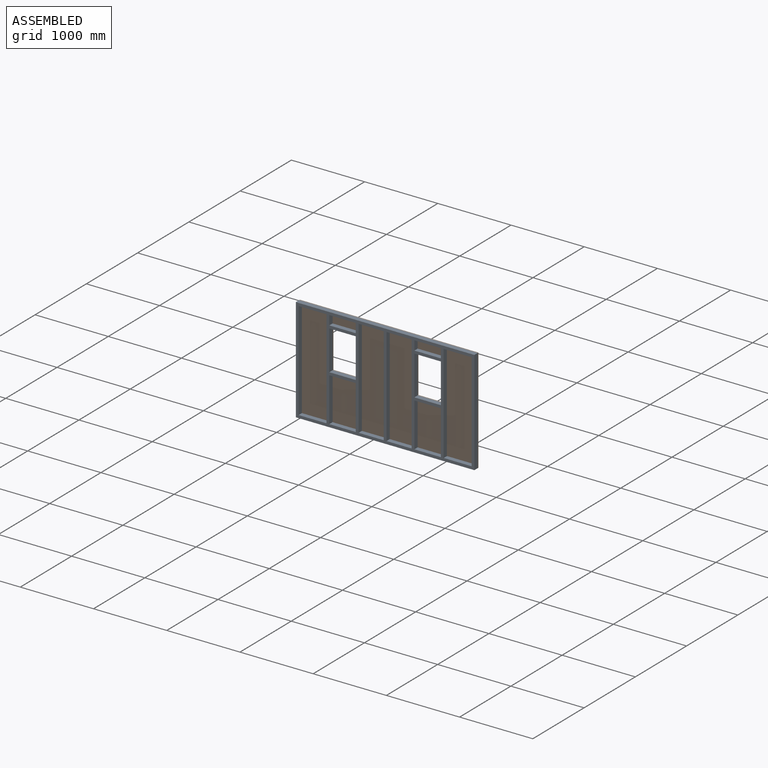
[diagram: assembled view]
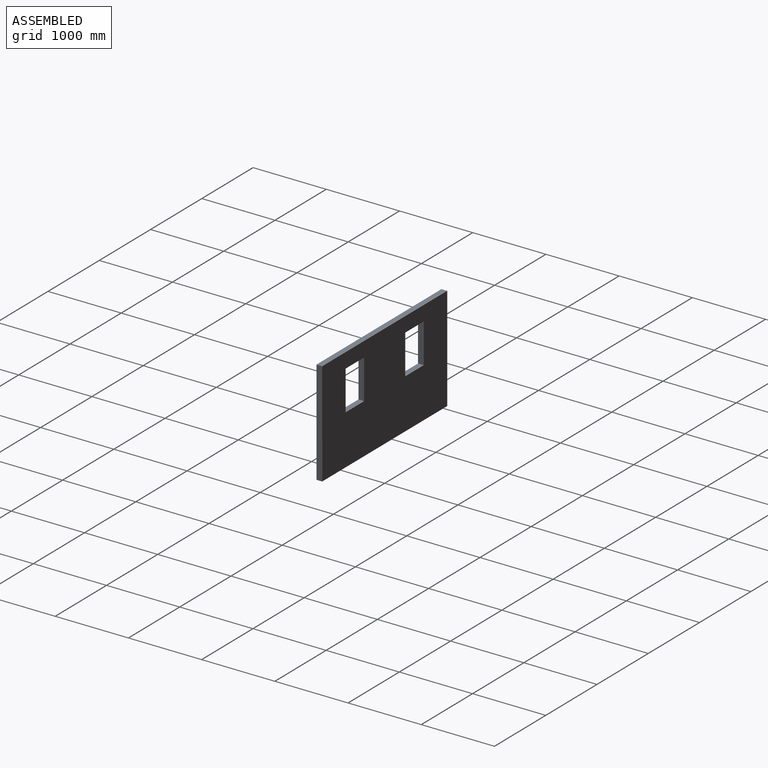
[diagram: assembled view, second angle]
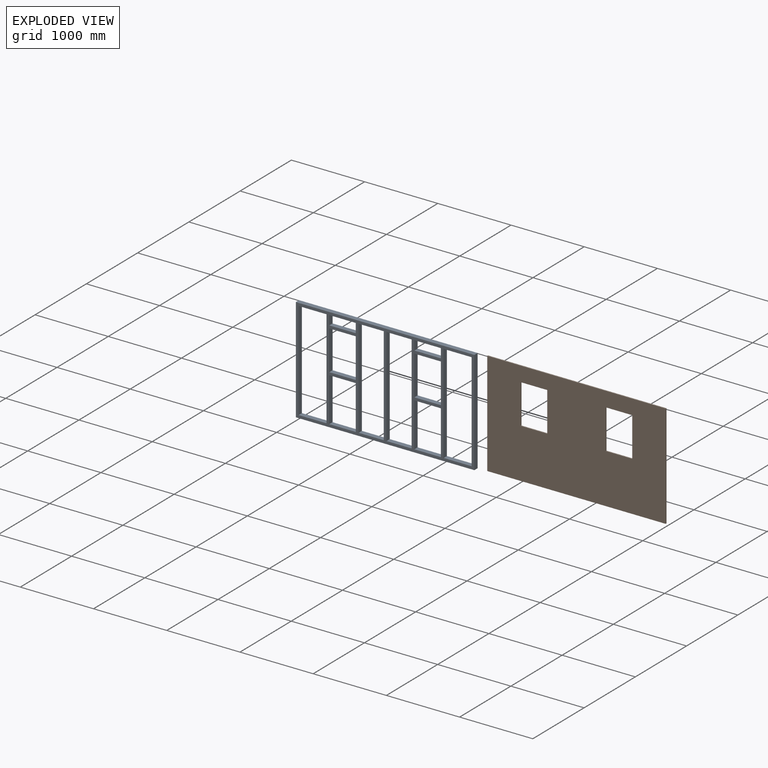
[diagram: exploded view]
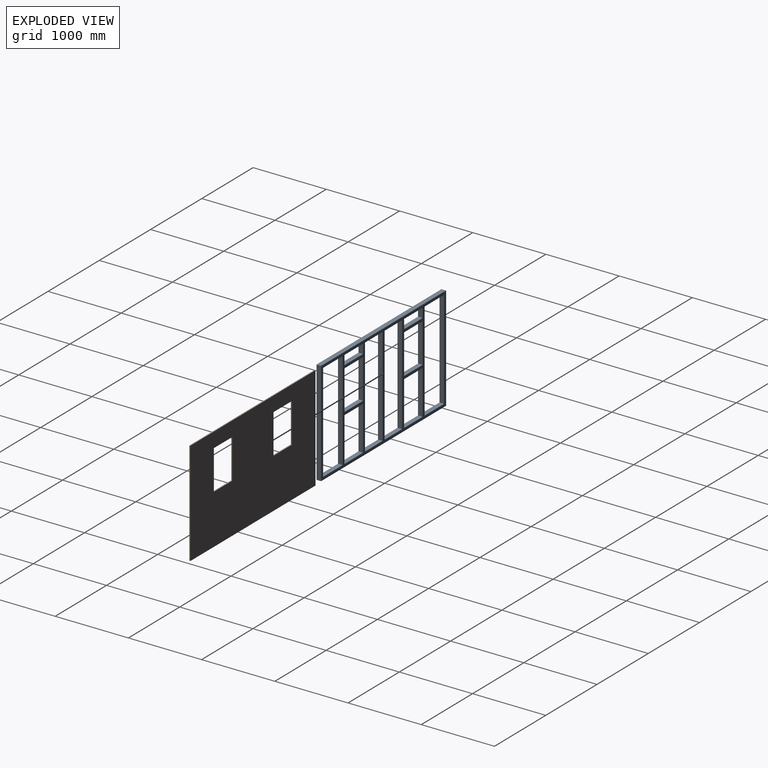
[diagram: exploded view, second angle]
ASSEMBLY  parts=2 mates=3
PART A: 46 faces, bbox 2438.4x63.5x1422.4 mm
  f0: plane 539.75x63.5mm, normal (-1,0,0), area 34274.1mm2, adj f1,f43,f44,f45
  f1: plane 361.95x63.5mm, normal (0,0,1), area 22983.8mm2, adj f0,f2,f44,f45
  f2: plane 539.75x63.5mm, normal (1,0,0), area 34274.1mm2, adj f1,f43,f44,f45
  f3: plane 342.9x63.5mm, normal (0,0,-1), area 21774.2mm2, adj f4,f33,f44,f45
  f4: plane 1346.2x63.5mm, normal (-1,0,0), area 85483.7mm2, adj f3,f5,f44,f45
  f5: plane 342.9x63.5mm, normal (0,0,1), area 21774.2mm2, adj f4,f33,f44,f45
  f6: plane 127x63.5mm, normal (1,0,0), area 8064.5mm2, adj f7,f34,f44,f45
  f7: plane 361.95x63.5mm, normal (0,0,-1), area 22983.8mm2, adj f6,f8,f44,f45
  f8: plane 127x63.5mm, normal (-1,0,0), area 8064.5mm2, adj f7,f34,f44,f45
  f9: plane 381x63.5mm, normal (0,0,-1), area 24193.5mm2, adj f10,f35,f44,f45
  f10: plane 1346.2x63.5mm, normal (-1,0,0), area 85483.7mm2, adj f9,f11,f44,f45
  f11: plane 381x63.5mm, normal (0,0,1), area 24193.5mm2, adj f10,f35,f44,f45
  f12: plane 127x63.5mm, normal (1,0,0), area 8064.5mm2, adj f13,f36,f44,f45
  f13: plane 361.95x63.5mm, normal (0,0,-1), area 22983.8mm2, adj f12,f14,f44,f45
  f14: plane 127x63.5mm, normal (-1,0,0), area 8064.5mm2, adj f13,f36,f44,f45
  f15: plane 342.9x63.5mm, normal (0,0,1), area 21774.1mm2, adj f16,f37,f44,f45
  f16: plane 1346.2x63.5mm, normal (1,0,0), area 85483.7mm2, adj f15,f17,f44,f45
  f17: plane 342.9x63.5mm, normal (0,0,-1), area 21774.1mm2, adj f16,f37,f44,f45
  f18: plane 1422.4x63.5mm, normal (1,0,0), area 90322.4mm2, adj f19,f38,f44,f45
  f19: plane 2438.4x63.5mm, normal (0,0,1), area 154838.4mm2, adj f18,f20,f44,f45
  f20: plane 1422.4x63.5mm, normal (-1,0,0), area 90322.4mm2, adj f19,f38,f44,f45
  f21: plane 361.95x63.5mm, normal (0,0,1), area 22983.8mm2, adj f22,f39,f44,f45
  f22: plane 603.25x63.5mm, normal (1,0,0), area 38306.4mm2, adj f21,f23,f44,f45
  f23: plane 361.95x63.5mm, normal (0,0,-1), area 22983.8mm2, adj f22,f39,f44,f45
  f24: plane 539.75x63.5mm, normal (-1,0,0), area 34274.1mm2, adj f25,f40,f44,f45
  f25: plane 361.95x63.5mm, normal (0,0,1), area 22983.8mm2, adj f24,f26,f44,f45
  f26: plane 539.75x63.5mm, normal (1,0,0), area 34274.1mm2, adj f25,f40,f44,f45
  f27: plane 381x63.5mm, normal (0,0,1), area 24193.5mm2, adj f28,f41,f44,f45
  f28: plane 1346.2x63.5mm, normal (1,0,0), area 85483.7mm2, adj f27,f29,f44,f45
  f29: plane 381x63.5mm, normal (0,0,-1), area 24193.5mm2, adj f28,f41,f44,f45
  f30: plane 361.95x63.5mm, normal (0,0,1), area 22983.8mm2, adj f31,f42,f44,f45
  f31: plane 603.25x63.5mm, normal (1,0,0), area 38306.4mm2, adj f30,f32,f44,f45
  f32: plane 361.95x63.5mm, normal (0,0,-1), area 22983.8mm2, adj f31,f42,f44,f45
  f33: plane 1346.2x63.5mm, normal (1,0,0), area 85483.7mm2, adj f3,f5,f44,f45
  f34: plane 361.95x63.5mm, normal (0,0,1), area 22983.8mm2, adj f6,f8,f44,f45
  f35: plane 1346.2x63.5mm, normal (1,0,0), area 85483.7mm2, adj f9,f11,f44,f45
  f36: plane 361.95x63.5mm, normal (0,0,1), area 22983.8mm2, adj f12,f14,f44,f45
  f37: plane 1346.2x63.5mm, normal (-1,0,0), area 85483.7mm2, adj f15,f17,f44,f45
  f38: plane 2438.4x63.5mm, normal (0,0,-1), area 154838.4mm2, adj f18,f20,f44,f45
  f39: plane 603.25x63.5mm, normal (-1,0,0), area 38306.4mm2, adj f21,f23,f44,f45
  f40: plane 361.95x63.5mm, normal (0,0,-1), area 22983.8mm2, adj f24,f26,f44,f45
  f41: plane 1346.2x63.5mm, normal (-1,0,0), area 85483.7mm2, adj f27,f29,f44,f45
  f42: plane 603.25x63.5mm, normal (-1,0,0), area 38306.4mm2, adj f30,f32,f44,f45
  f43: plane 361.95x63.5mm, normal (0,0,-1), area 22983.8mm2, adj f0,f2,f44,f45
  f44: plane 2438.4x1422.4mm, normal (0,-1,0), area 599998.8mm2, adj f0,f1,f2,f3,f4,f5,f6,f7
  f45: plane 2438.4x1422.4mm, normal (0,1,0), area 599998.8mm2, adj f0,f1,f2,f3,f4,f5,f6,f7
PART B: 14 faces, bbox 2438.4x14.7x1422.4 mm
  f0: plane 1422.4x14.68mm, normal (1,0,0), area 20882.5mm2, adj f1,f11,f12,f13
  f1: plane 2438.4x14.68mm, normal (0,0,1), area 35798.6mm2, adj f0,f2,f12,f13
  f2: plane 1422.4x14.68mm, normal (-1,0,0), area 20882.5mm2, adj f1,f11,f12,f13
  f3: plane 361.95x14.68mm, normal (0,0,1), area 5313.9mm2, adj f4,f9,f12,f13
  f4: plane 539.75x14.68mm, normal (1,0,0), area 7924.2mm2, adj f3,f5,f12,f13
  f5: plane 361.95x14.68mm, normal (0,0,-1), area 5313.9mm2, adj f4,f9,f12,f13
  f6: plane 361.95x14.68mm, normal (0,0,1), area 5313.9mm2, adj f7,f10,f12,f13
  f7: plane 539.75x14.68mm, normal (1,0,0), area 7924.2mm2, adj f6,f8,f12,f13
  f8: plane 361.95x14.68mm, normal (0,0,-1), area 5313.9mm2, adj f7,f10,f12,f13
  f9: plane 539.75x14.68mm, normal (-1,0,0), area 7924.2mm2, adj f3,f5,f12,f13
  f10: plane 539.75x14.68mm, normal (-1,0,0), area 7924.2mm2, adj f6,f8,f12,f13
  f11: plane 2438.4x14.68mm, normal (0,0,-1), area 35798.6mm2, adj f0,f2,f12,f13
  f12: plane 2438.4x1422.4mm, normal (0,-1,0), area 3077655.1mm2, adj f0,f1,f2,f3,f4,f5,f6,f7
  f13: plane 2438.4x1422.4mm, normal (0,1,0), area 3077655.1mm2, adj f0,f1,f2,f3,f4,f5,f6,f7
PLACE A t=(0,2438.4,97.63)mm
PLACE B rot(axis=(0,0,-1),180deg) t=(2438.4,2438.4,97.63)mm
MATE planar A.f18 <-> B.f2  axis (1,0,0) through (2438.4,2406.65,808.83)mm
MATE planar A.f45 <-> B.f13  axis (0,1,0) through (1219.2,2438.4,830.72)mm
MATE planar A.f38 <-> B.f11  axis (0,0,-1) through (1219.2,2406.65,97.63)mm
